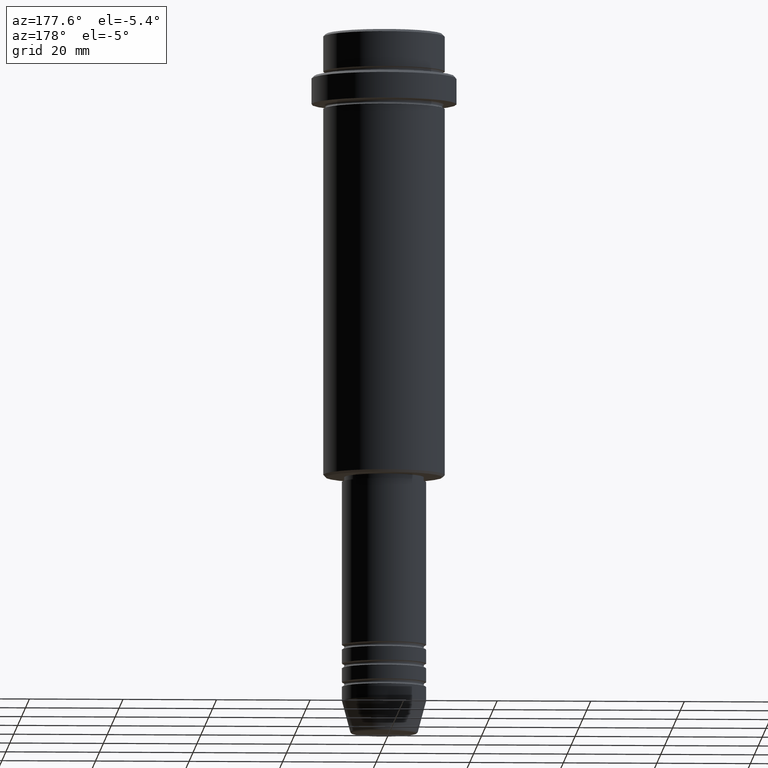
[diagram: clean part render]
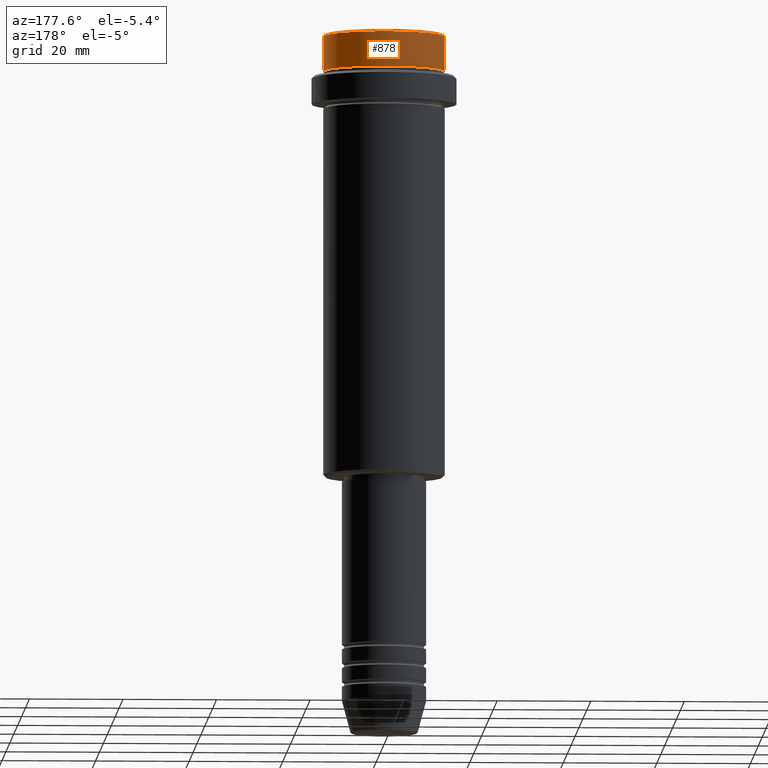
[diagram: same view with one face highlighted and labeled with its STEP entity id]
A machine part, auxiliary view. The second image highlights one B-rep face of the part: STEP entity #878.
In plain terms, the highlighted cylindrical surface (partial cylindrical patch) has radius 13 mm, axis along (-0, -0, 1).
Its self-contained STEP definition (entity closure, byte-faithful):
#15 = AXIS2_PLACEMENT_3D ( 'NONE', #367, #396, #799 ) ;
#38 = FACE_OUTER_BOUND ( 'NONE', #1299, .T. ) ;
#111 = EDGE_CURVE ( 'NONE', #1099, #1214, #639, .T. ) ;
#154 = ORIENTED_EDGE ( 'NONE', *, *, #716, .T. ) ;
#182 = CARTESIAN_POINT ( 'NONE',  ( 12.99999999999999822, 0.000000000000000000, -7.999999999999998224 ) ) ;
#209 = DIRECTION ( 'NONE',  ( -0.000000000000000000, -0.000000000000000000, 1.000000000000000000 ) ) ;
#234 = ORIENTED_EDGE ( 'NONE', *, *, #111, .T. ) ;
#246 = CARTESIAN_POINT ( 'NONE',  ( 0.000000000000000000, 0.000000000000000000, 0.000000000000000000 ) ) ;
#361 = CYLINDRICAL_SURFACE ( 'NONE', #894, 12.99999999999999822 ) ;
#367 = CARTESIAN_POINT ( 'NONE',  ( 0.000000000000000000, 0.000000000000000000, -0.4999999999999900080 ) ) ;
#396 = DIRECTION ( 'NONE',  ( 0.000000000000000000, 0.000000000000000000, -1.000000000000000000 ) ) ;
#401 = LINE ( 'NONE', #1390, #418 ) ;
#418 = VECTOR ( 'NONE', #976, 1000.000000000000000 ) ;
#453 = DIRECTION ( 'NONE',  ( 1.000000000000000000, 0.000000000000000000, 0.000000000000000000 ) ) ;
#583 = VERTEX_POINT ( 'NONE', #588 ) ;
#588 = CARTESIAN_POINT ( 'NONE',  ( 12.99999999999999822, 0.000000000000000000, -0.4999999999999900080 ) ) ;
#639 = CIRCLE ( 'NONE', #824, 12.99999999999999822 ) ;
#716 = EDGE_CURVE ( 'NONE', #1214, #1377, #401, .T. ) ;
#732 = EDGE_CURVE ( 'NONE', #1099, #583, #1186, .T. ) ;
#774 = CARTESIAN_POINT ( 'NONE',  ( -12.99999999999999822, 1.592040838891558898E-15, -7.999999999999998224 ) ) ;
#799 = DIRECTION ( 'NONE',  ( 1.000000000000000000, 0.000000000000000000, 0.000000000000000000 ) ) ;
#809 = CIRCLE ( 'NONE', #15, 12.99999999999999822 ) ;
#824 = AXIS2_PLACEMENT_3D ( 'NONE', #1172, #948, #1056 ) ;
#878 = ADVANCED_FACE ( 'NONE', ( #38 ), #361, .T. ) ;
#882 = ORIENTED_EDGE ( 'NONE', *, *, #1318, .T. ) ;
#894 = AXIS2_PLACEMENT_3D ( 'NONE', #246, #992, #453 ) ;
#948 = DIRECTION ( 'NONE',  ( -0.000000000000000000, -0.000000000000000000, 1.000000000000000000 ) ) ;
#976 = DIRECTION ( 'NONE',  ( -0.000000000000000000, -0.000000000000000000, 1.000000000000000000 ) ) ;
#992 = DIRECTION ( 'NONE',  ( -0.000000000000000000, -0.000000000000000000, 1.000000000000000000 ) ) ;
#1056 = DIRECTION ( 'NONE',  ( 1.000000000000000000, 0.000000000000000000, 0.000000000000000000 ) ) ;
#1099 = VERTEX_POINT ( 'NONE', #182 ) ;
#1106 = VECTOR ( 'NONE', #209, 1000.000000000000000 ) ;
#1132 = ORIENTED_EDGE ( 'NONE', *, *, #732, .F. ) ;
#1172 = CARTESIAN_POINT ( 'NONE',  ( 0.000000000000000000, 0.000000000000000000, -7.999999999999998224 ) ) ;
#1186 = LINE ( 'NONE', #1209, #1106 ) ;
#1209 = CARTESIAN_POINT ( 'NONE',  ( 12.99999999999999822, 0.000000000000000000, 0.000000000000000000 ) ) ;
#1214 = VERTEX_POINT ( 'NONE', #774 ) ;
#1299 = EDGE_LOOP ( 'NONE', ( #234, #154, #882, #1132 ) ) ;
#1318 = EDGE_CURVE ( 'NONE', #1377, #583, #809, .T. ) ;
#1377 = VERTEX_POINT ( 'NONE', #1400 ) ;
#1390 = CARTESIAN_POINT ( 'NONE',  ( -12.99999999999999822, 1.592040838891558898E-15, 0.000000000000000000 ) ) ;
#1400 = CARTESIAN_POINT ( 'NONE',  ( -12.99999999999999822, 1.592040838891558898E-15, -0.4999999999999900080 ) ) ;